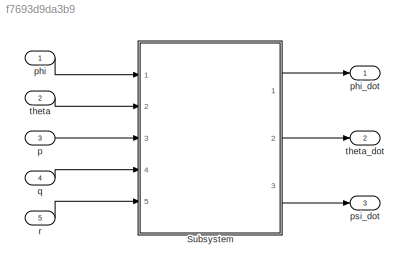
MODEL slx_f7693d9da3b9
KIND model
CONFIG AbsTol = auto
CONFIG EnableMultiTasking = off
CONFIG FixedStep = auto
CONFIG MaxStep = auto
CONFIG MinStep = auto
CONFIG RelTol = 1e-3
CONFIG SampleTimeConstraint = Unconstrained
CONFIG Solver = VariableStepAuto
CONFIG SolverName = VariableStepAuto
CONFIG StartTime = 0.0
CONFIG StopTime = 10.0
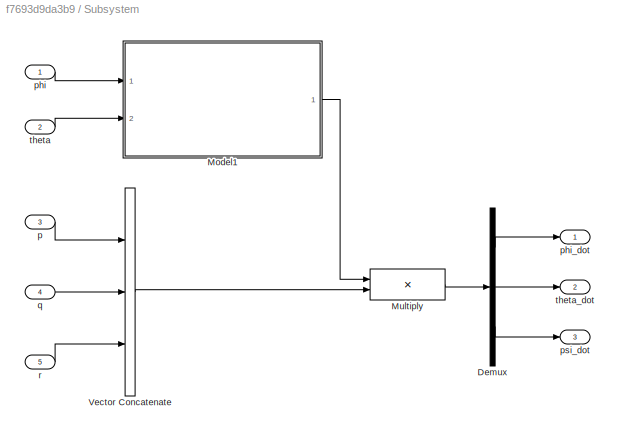
BLOCK [SubSystem] Subsystem
  Ports = [5, 3]
  RequestExecContextInheritance = off
BLOCK [Demux] Subsystem/Demux
  DisplayOption = bar
  Outputs = 3
  Ports = [1, 3]
BLOCK [ModelReference] Subsystem/Model1
  ModelNameDialog = Angular_Transformation_Matrix.slx
  ModelReferenceVersion = 1.5
  Ports = [2, 1]
BLOCK [Product] Subsystem/Multiply
  InputSameDT = off
  Multiplication = Matrix(*)
  OutDataTypeStr = Inherit: Inherit via internal rule
  Ports = [2, 1]
  RndMeth = Floor
  SaturateOnIntegerOverflow = off
BLOCK [Concatenate] Subsystem/Vector Concatenate
  NumInputs = 3
  Ports = [3, 1]
BLOCK [Inport] Subsystem/p
  IconDisplay = Port number
  Port = 3
BLOCK [Inport] Subsystem/phi
  IconDisplay = Port number
BLOCK [Outport] Subsystem/phi_dot
  IconDisplay = Port number
BLOCK [Outport] Subsystem/psi_dot
  IconDisplay = Port number
  Port = 3
BLOCK [Inport] Subsystem/q
  IconDisplay = Port number
  Port = 4
BLOCK [Inport] Subsystem/r
  IconDisplay = Port number
  Port = 5
BLOCK [Inport] Subsystem/theta
  IconDisplay = Port number
  Port = 2
BLOCK [Outport] Subsystem/theta_dot
  IconDisplay = Port number
  Port = 2
BLOCK [Inport] p
  IconDisplay = Port number
  Port = 3
BLOCK [Inport] phi
  IconDisplay = Port number
BLOCK [Outport] phi_dot
  IconDisplay = Port number
BLOCK [Outport] psi_dot
  IconDisplay = Port number
  Port = 3
BLOCK [Inport] q
  IconDisplay = Port number
  Port = 4
BLOCK [Inport] r
  IconDisplay = Port number
  Port = 5
BLOCK [Inport] theta
  IconDisplay = Port number
  Port = 2
BLOCK [Outport] theta_dot
  IconDisplay = Port number
  Port = 2
LINE Subsystem/Demux:1 -> Subsystem/phi_dot:1
LINE Subsystem/Demux:2 -> Subsystem/theta_dot:1
LINE Subsystem/Demux:3 -> Subsystem/psi_dot:1
LINE Subsystem/Model1:1 -> Subsystem/Multiply:1
LINE Subsystem/Multiply:1 -> Subsystem/Demux:1
LINE Subsystem/Vector Concatenate:1 -> Subsystem/Multiply:2
LINE Subsystem/p:1 -> Subsystem/Vector Concatenate:1
LINE Subsystem/phi:1 -> Subsystem/Model1:1
LINE Subsystem/q:1 -> Subsystem/Vector Concatenate:2
LINE Subsystem/r:1 -> Subsystem/Vector Concatenate:3
LINE Subsystem/theta:1 -> Subsystem/Model1:2
LINE Subsystem:1 -> phi_dot:1
LINE Subsystem:2 -> theta_dot:1
LINE Subsystem:3 -> psi_dot:1
LINE p:1 -> Subsystem:3
LINE phi:1 -> Subsystem:1
LINE q:1 -> Subsystem:4
LINE r:1 -> Subsystem:5
LINE theta:1 -> Subsystem:2
